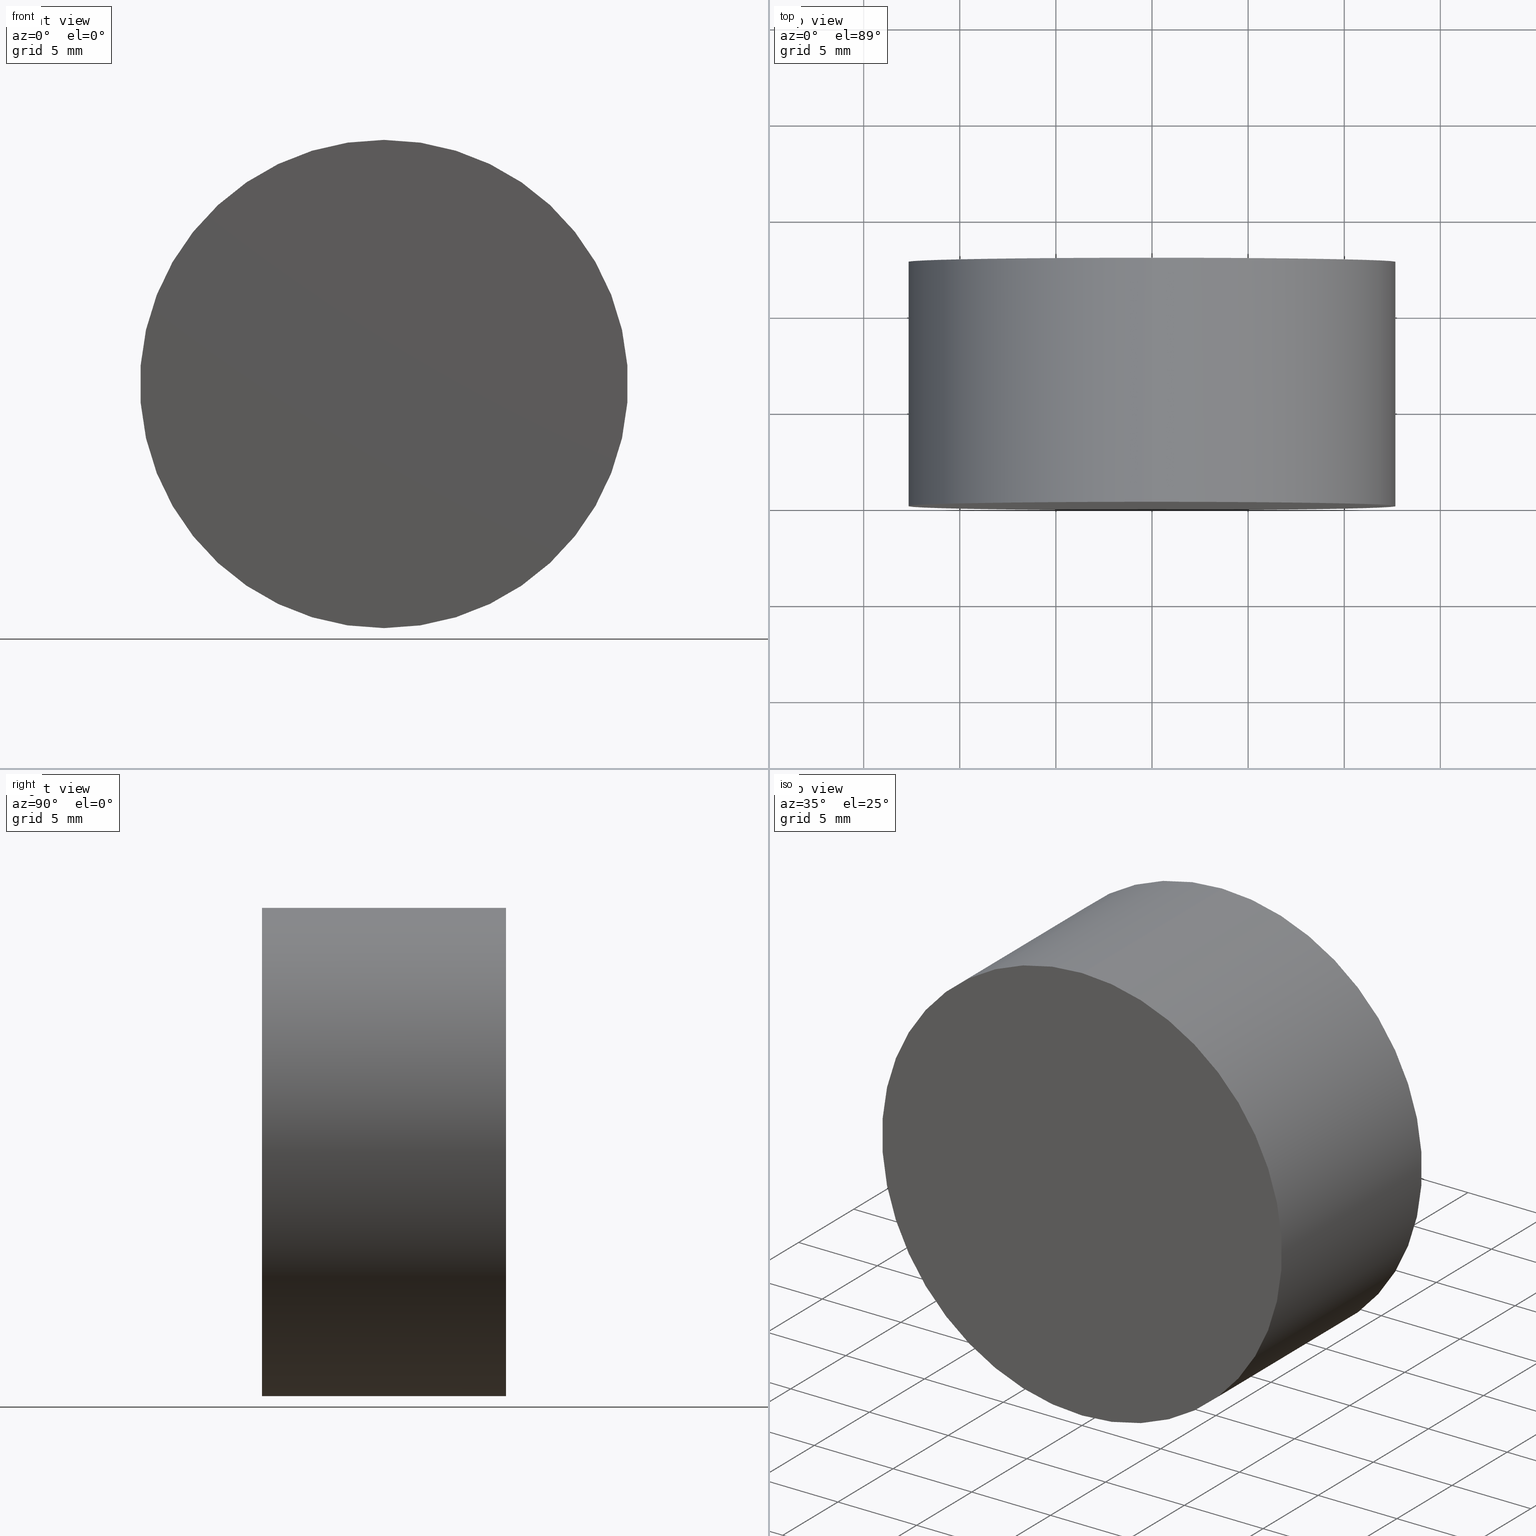
[diagram: canonical four-view strip — front | top / right | iso, engineering-drawing reading convention]
A machine part, canonical four-view strip (front | top / right | iso — engineering-drawing reading convention). The complete STEP part file that produces these views, byte-faithful:
ISO-10303-21;
HEADER;
FILE_DESCRIPTION (( 'STEP AP214' ),
    '1' );
FILE_NAME ('192500.STEP',
    '2019-07-19T03:03:54',
    ( 'user' ),
    ( '΢���й�' ),
    'SwSTEP 2.0',
    'SolidWorks 2016',
    '' );
FILE_SCHEMA (( 'AUTOMOTIVE_DESIGN' ));
ENDSEC;

DATA;
#1 = LINE ( 'NONE', #29, #30 ) ;
#2 = EDGE_CURVE ( 'NONE', #19, #77, #26, .T. ) ;
#3 = UNCERTAINTY_MEASURE_WITH_UNIT (LENGTH_MEASURE( 1.000000000000000100E-005 ), #137, 'distance_accuracy_value', 'NONE');
#4 = SURFACE_STYLE_USAGE ( .BOTH. , #28 ) ;
#5 = CARTESIAN_POINT ( 'NONE',  ( 0.0000000000000000000, 12.69999999999999900, 0.0000000000000000000 ) ) ;
#6 = DIRECTION ( 'NONE',  ( -0.0000000000000000000, -1.000000000000000000, -0.0000000000000000000 ) ) ;
#7 = FACE_OUTER_BOUND ( 'NONE', #78, .T. ) ;
#8 =( NAMED_UNIT ( * ) PLANE_ANGLE_UNIT ( ) SI_UNIT ( $, .RADIAN. ) );
#9 =( NAMED_UNIT ( * ) SI_UNIT ( $, .STERADIAN. ) SOLID_ANGLE_UNIT ( ) );
#10 = EDGE_CURVE ( 'NONE', #14, #76, #82, .T. ) ;
#11 = PRODUCT_DEFINITION_CONTEXT ( 'detailed design', #64, 'design' ) ;
#12 = FACE_OUTER_BOUND ( 'NONE', #46, .T. ) ;
#13 = PRESENTATION_STYLE_ASSIGNMENT (( #4 ) ) ;
#14 = VERTEX_POINT ( 'NONE', #112 ) ;
#15 = EDGE_CURVE ( 'NONE', #77, #76, #1, .T. ) ;
#16 = FILL_AREA_STYLE_COLOUR ( '', #94 ) ;
#17 = PLANE ( 'NONE',  #44 ) ;
#18 = DIRECTION ( 'NONE',  ( 0.0000000000000000000, 1.000000000000000000, 0.0000000000000000000 ) ) ;
#19 = VERTEX_POINT ( 'NONE', #139 ) ;
#20 = APPLICATION_PROTOCOL_DEFINITION ( 'draft international standard', 'automotive_design', 1998, #121 ) ;
#21 = EDGE_LOOP ( 'NONE', ( #136, #123, #54, #52 ) ) ;
#22 = VECTOR ( 'NONE', #6, 1000.000000000000000 ) ;
#23 = EDGE_CURVE ( 'NONE', #76, #14, #56, .T. ) ;
#24 = MECHANICAL_DESIGN_GEOMETRIC_PRESENTATION_REPRESENTATION (  '', ( #48 ), #115 ) ;
#25 = AXIS2_PLACEMENT_3D ( 'NONE', #5, #60, #134 ) ;
#26 = CIRCLE ( 'NONE', #131, 12.69999999999999900 ) ;
#27 = DIRECTION ( 'NONE',  ( 0.0000000000000000000, 1.000000000000000000, 0.0000000000000000000 ) ) ;
#28 = SURFACE_SIDE_STYLE ('',( #97 ) ) ;
#29 = CARTESIAN_POINT ( 'NONE',  ( 0.0000000000000000000, 12.69999999999999900, -12.69999999999999900 ) ) ;
#30 = VECTOR ( 'NONE', #80, 1000.000000000000000 ) ;
#31 = CARTESIAN_POINT ( 'NONE',  ( 0.0000000000000000000, 0.0000000000000000000, 0.0000000000000000000 ) ) ;
#32 = EDGE_CURVE ( 'NONE', #19, #14, #109, .T. ) ;
#33 = PRODUCT_DEFINITION_FORMATION_WITH_SPECIFIED_SOURCE ( '�κ�', '', #130, .NOT_KNOWN. ) ;
#34 = SURFACE_STYLE_FILL_AREA ( #62 ) ;
#35 = EDGE_CURVE ( 'NONE', #77, #19, #107, .T. ) ;
#36 = CARTESIAN_POINT ( 'NONE',  ( 0.0000000000000000000, 0.0000000000000000000, -12.69999999999999900 ) ) ;
#37 = DIRECTION ( 'NONE',  ( 0.0000000000000000000, 1.000000000000000000, 0.0000000000000000000 ) ) ;
#38 = SHAPE_DEFINITION_REPRESENTATION ( #70, #86 ) ;
#39 = DIRECTION ( 'NONE',  ( 0.0000000000000000000, 0.0000000000000000000, 1.000000000000000000 ) ) ;
#40 = DIRECTION ( 'NONE',  ( -0.0000000000000000000, -1.000000000000000000, -0.0000000000000000000 ) ) ;
#41 = ADVANCED_FACE ( 'NONE', ( #58 ), #17, .F. ) ;
#42 = CYLINDRICAL_SURFACE ( 'NONE', #117, 12.69999999999999900 ) ;
#43 = ORIENTED_EDGE ( 'NONE', *, *, #15, .F. ) ;
#44 = AXIS2_PLACEMENT_3D ( 'NONE', #120, #49, #119 ) ;
#45 =( GEOMETRIC_REPRESENTATION_CONTEXT ( 3 ) GLOBAL_UNCERTAINTY_ASSIGNED_CONTEXT ( ( #113 ) ) GLOBAL_UNIT_ASSIGNED_CONTEXT ( ( #98, #8, #135 ) ) REPRESENTATION_CONTEXT ( 'NONE', 'WORKASPACE' ) );
#46 = EDGE_LOOP ( 'NONE', ( #129, #138, #103, #43 ) ) ;
#47 = ORIENTED_EDGE ( 'NONE', *, *, #2, .T. ) ;
#48 = STYLED_ITEM ( 'NONE', ( #13 ), #66 ) ;
#49 = DIRECTION ( 'NONE',  ( 0.0000000000000000000, 1.000000000000000000, 0.0000000000000000000 ) ) ;
#50 = CARTESIAN_POINT ( 'NONE',  ( 0.0000000000000000000, 0.0000000000000000000, 0.0000000000000000000 ) ) ;
#51 = SURFACE_STYLE_USAGE ( .BOTH. , #73 ) ;
#52 = ORIENTED_EDGE ( 'NONE', *, *, #23, .T. ) ;
#53 = DIRECTION ( 'NONE',  ( 0.0000000000000000000, -0.0000000000000000000, 1.000000000000000000 ) ) ;
#54 = ORIENTED_EDGE ( 'NONE', *, *, #15, .T. ) ;
#55 = AXIS2_PLACEMENT_3D ( 'NONE', #59, #40, #133 ) ;
#56 = CIRCLE ( 'NONE', #114, 12.69999999999999900 ) ;
#57 = MECHANICAL_DESIGN_GEOMETRIC_PRESENTATION_REPRESENTATION (  '', ( #84 ), #45 ) ;
#58 = FACE_OUTER_BOUND ( 'NONE', #132, .T. ) ;
#59 = CARTESIAN_POINT ( 'NONE',  ( 0.0000000000000000000, 12.69999999999999900, 0.0000000000000000000 ) ) ;
#60 = DIRECTION ( 'NONE',  ( 0.0000000000000000000, 1.000000000000000000, 0.0000000000000000000 ) ) ;
#61 = PRESENTATION_LAYER_ASSIGNMENT (  '', '', ( #84 ) ) ;
#62 = FILL_AREA_STYLE ('',( #110 ) ) ;
#63 = DIRECTION ( 'NONE',  ( 0.0000000000000000000, 0.0000000000000000000, 1.000000000000000000 ) ) ;
#64 = APPLICATION_CONTEXT ( 'automotive_design' ) ;
#65 = CYLINDRICAL_SURFACE ( 'NONE', #55, 12.69999999999999900 ) ;
#66 = MANIFOLD_SOLID_BREP ( '͹̨-����1', #127 ) ;
#67 = FACE_OUTER_BOUND ( 'NONE', #21, .T. ) ;
#68 = PRODUCT_RELATED_PRODUCT_CATEGORY ( 'part', '', ( #130 ) ) ;
#69 =( NAMED_UNIT ( * ) PLANE_ANGLE_UNIT ( ) SI_UNIT ( $, .RADIAN. ) );
#70 = PRODUCT_DEFINITION_SHAPE ( 'NONE', 'NONE',  #128 ) ;
#71 = CARTESIAN_POINT ( 'NONE',  ( 0.0000000000000000000, 12.69999999999999900, -12.69999999999999900 ) ) ;
#72 = CARTESIAN_POINT ( 'NONE',  ( 1.555301434917138400E-015, 12.69999999999999900, 12.69999999999999900 ) ) ;
#73 = SURFACE_SIDE_STYLE ('',( #34 ) ) ;
#74 =( NAMED_UNIT ( * ) PLANE_ANGLE_UNIT ( ) SI_UNIT ( $, .RADIAN. ) );
#75 = ORIENTED_EDGE ( 'NONE', *, *, #10, .F. ) ;
#76 = VERTEX_POINT ( 'NONE', #36 ) ;
#77 = VERTEX_POINT ( 'NONE', #71 ) ;
#78 = EDGE_LOOP ( 'NONE', ( #95, #47 ) ) ;
#79 =( NAMED_UNIT ( * ) SI_UNIT ( $, .STERADIAN. ) SOLID_ANGLE_UNIT ( ) );
#80 = DIRECTION ( 'NONE',  ( -0.0000000000000000000, -1.000000000000000000, -0.0000000000000000000 ) ) ;
#81 = DIRECTION ( 'NONE',  ( 1.000000000000000000, 0.0000000000000000000, 0.0000000000000000000 ) ) ;
#82 = CIRCLE ( 'NONE', #125, 12.69999999999999900 ) ;
#83 = ADVANCED_FACE ( 'NONE', ( #67 ), #42, .T. ) ;
#84 = STYLED_ITEM ( 'NONE', ( #105 ), #86 ) ;
#85 = PRESENTATION_LAYER_ASSIGNMENT (  '', '', ( #48 ) ) ;
#86 = ADVANCED_BREP_SHAPE_REPRESENTATION ( '192500', ( #66, #100 ), #93 ) ;
#87 =( LENGTH_UNIT ( ) NAMED_UNIT ( * ) SI_UNIT ( .MILLI., .METRE. ) );
#88 = DIRECTION ( 'NONE',  ( -0.0000000000000000000, -1.000000000000000000, -0.0000000000000000000 ) ) ;
#89 = FILL_AREA_STYLE ('',( #16 ) ) ;
#90 = DIRECTION ( 'NONE',  ( 0.0000000000000000000, 0.0000000000000000000, 1.000000000000000000 ) ) ;
#91 = DIRECTION ( 'NONE',  ( 0.0000000000000000000, 1.000000000000000000, 0.0000000000000000000 ) ) ;
#92 = ADVANCED_FACE ( 'NONE', ( #12 ), #65, .T. ) ;
#93 =( GEOMETRIC_REPRESENTATION_CONTEXT ( 3 ) GLOBAL_UNCERTAINTY_ASSIGNED_CONTEXT ( ( #3 ) ) GLOBAL_UNIT_ASSIGNED_CONTEXT ( ( #137, #74, #9 ) ) REPRESENTATION_CONTEXT ( 'NONE', 'WORKASPACE' ) );
#94 = COLOUR_RGB ( '',1.000000000000000000, 1.000000000000000000, 1.000000000000000000 ) ;
#95 = ORIENTED_EDGE ( 'NONE', *, *, #35, .T. ) ;
#96 = UNCERTAINTY_MEASURE_WITH_UNIT (LENGTH_MEASURE( 1.000000000000000100E-005 ), #87, 'distance_accuracy_value', 'NONE');
#97 = SURFACE_STYLE_FILL_AREA ( #89 ) ;
#98 =( LENGTH_UNIT ( ) NAMED_UNIT ( * ) SI_UNIT ( .MILLI., .METRE. ) );
#99 = CARTESIAN_POINT ( 'NONE',  ( 0.0000000000000000000, 12.69999999999999900, 0.0000000000000000000 ) ) ;
#100 = AXIS2_PLACEMENT_3D ( 'NONE', #31, #63, #81 ) ;
#101 = APPLICATION_PROTOCOL_DEFINITION ( 'draft international standard', 'automotive_design', 1998, #64 ) ;
#102 = CARTESIAN_POINT ( 'NONE',  ( 0.0000000000000000000, 0.0000000000000000000, 0.0000000000000000000 ) ) ;
#103 = ORIENTED_EDGE ( 'NONE', *, *, #10, .T. ) ;
#104 = CARTESIAN_POINT ( 'NONE',  ( 0.0000000000000000000, 12.69999999999999900, 0.0000000000000000000 ) ) ;
#105 = PRESENTATION_STYLE_ASSIGNMENT (( #51 ) ) ;
#106 = ORIENTED_EDGE ( 'NONE', *, *, #23, .F. ) ;
#107 = CIRCLE ( 'NONE', #25, 12.69999999999999900 ) ;
#108 = AXIS2_PLACEMENT_3D ( 'NONE', #104, #91, #53 ) ;
#109 = LINE ( 'NONE', #72, #22 ) ;
#110 = FILL_AREA_STYLE_COLOUR ( '', #126 ) ;
#111 = DIRECTION ( 'NONE',  ( 0.0000000000000000000, 0.0000000000000000000, 1.000000000000000000 ) ) ;
#112 = CARTESIAN_POINT ( 'NONE',  ( 1.555301434917138400E-015, 0.0000000000000000000, 12.69999999999999900 ) ) ;
#113 = UNCERTAINTY_MEASURE_WITH_UNIT (LENGTH_MEASURE( 1.000000000000000100E-005 ), #98, 'distance_accuracy_value', 'NONE');
#114 = AXIS2_PLACEMENT_3D ( 'NONE', #50, #37, #111 ) ;
#115 =( GEOMETRIC_REPRESENTATION_CONTEXT ( 3 ) GLOBAL_UNCERTAINTY_ASSIGNED_CONTEXT ( ( #96 ) ) GLOBAL_UNIT_ASSIGNED_CONTEXT ( ( #87, #69, #79 ) ) REPRESENTATION_CONTEXT ( 'NONE', 'WORKASPACE' ) );
#116 = CARTESIAN_POINT ( 'NONE',  ( 0.0000000000000000000, 12.69999999999999900, 0.0000000000000000000 ) ) ;
#117 = AXIS2_PLACEMENT_3D ( 'NONE', #99, #88, #118 ) ;
#118 = DIRECTION ( 'NONE',  ( 0.0000000000000000000, 0.0000000000000000000, -1.000000000000000000 ) ) ;
#119 = DIRECTION ( 'NONE',  ( 0.0000000000000000000, -0.0000000000000000000, 1.000000000000000000 ) ) ;
#120 = CARTESIAN_POINT ( 'NONE',  ( 0.0000000000000000000, 0.0000000000000000000, 0.0000000000000000000 ) ) ;
#121 = APPLICATION_CONTEXT ( 'automotive_design' ) ;
#122 = PLANE ( 'NONE',  #108 ) ;
#123 = ORIENTED_EDGE ( 'NONE', *, *, #35, .F. ) ;
#124 = PRODUCT_CONTEXT ( 'NONE', #121, 'mechanical' ) ;
#125 = AXIS2_PLACEMENT_3D ( 'NONE', #102, #18, #90 ) ;
#126 = COLOUR_RGB ( '',1.000000000000000000, 1.000000000000000000, 1.000000000000000000 ) ;
#127 = CLOSED_SHELL ( 'NONE', ( #92, #83, #140, #41 ) ) ;
#128 = PRODUCT_DEFINITION ( 'δ֪', '', #33, #11 ) ;
#129 = ORIENTED_EDGE ( 'NONE', *, *, #2, .F. ) ;
#130 = PRODUCT ( '192500', '192500', '', ( #124 ) ) ;
#131 = AXIS2_PLACEMENT_3D ( 'NONE', #116, #27, #39 ) ;
#132 = EDGE_LOOP ( 'NONE', ( #106, #75 ) ) ;
#133 = DIRECTION ( 'NONE',  ( 0.0000000000000000000, 0.0000000000000000000, -1.000000000000000000 ) ) ;
#134 = DIRECTION ( 'NONE',  ( 0.0000000000000000000, 0.0000000000000000000, 1.000000000000000000 ) ) ;
#135 =( NAMED_UNIT ( * ) SI_UNIT ( $, .STERADIAN. ) SOLID_ANGLE_UNIT ( ) );
#136 = ORIENTED_EDGE ( 'NONE', *, *, #32, .F. ) ;
#137 =( LENGTH_UNIT ( ) NAMED_UNIT ( * ) SI_UNIT ( .MILLI., .METRE. ) );
#138 = ORIENTED_EDGE ( 'NONE', *, *, #32, .T. ) ;
#139 = CARTESIAN_POINT ( 'NONE',  ( 1.555301434917138400E-015, 12.69999999999999900, 12.69999999999999900 ) ) ;
#140 = ADVANCED_FACE ( 'NONE', ( #7 ), #122, .T. ) ;
ENDSEC;
END-ISO-10303-21;
